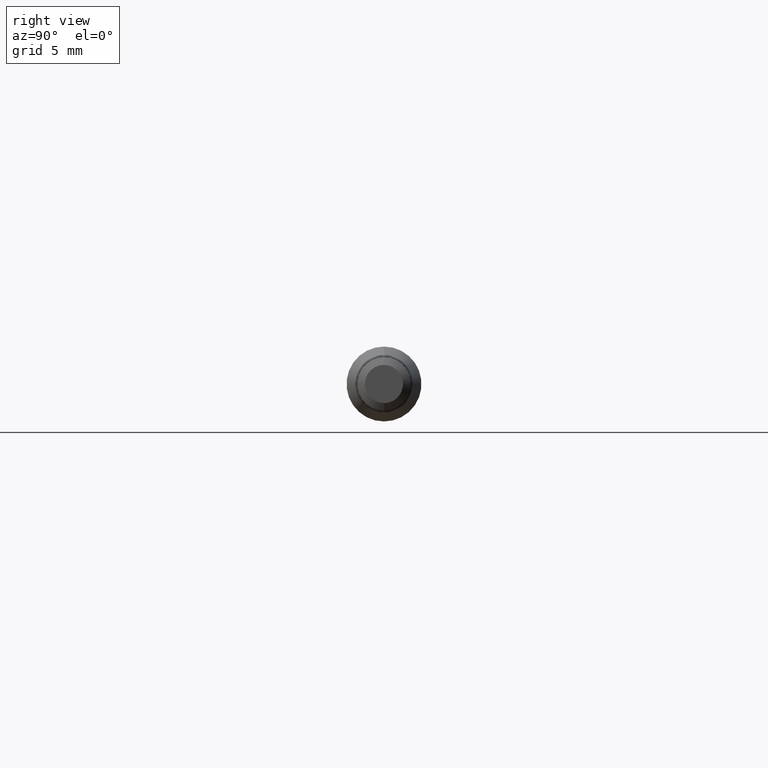
[diagram: clean part render]
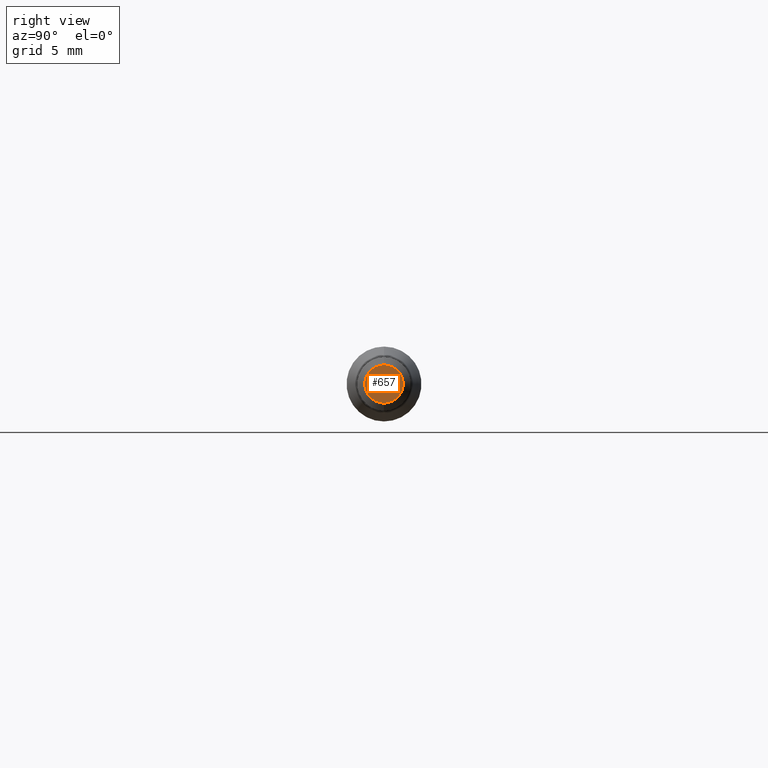
[diagram: same view with one face highlighted and labeled with its STEP entity id]
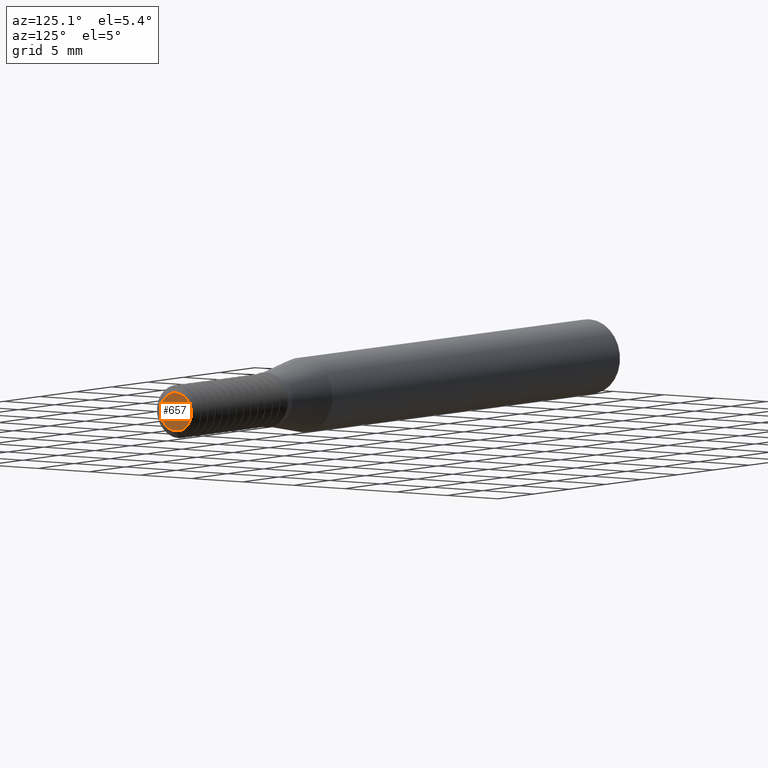
[diagram: same view with one face highlighted and labeled with its STEP entity id]
A machine part, right view. The second image highlights one B-rep face of the part: STEP entity #657.
A second angle (auxiliary view) of the same face is appended — the face is thin or edge-on in the first view.
In plain terms, the highlighted planar face has unit normal (1, 0, -0).
Its self-contained STEP definition (entity closure, byte-faithful):
#147 = PLANE ( 'NONE',  #2699 ) ;
#160 = VERTEX_POINT ( 'NONE', #2719 ) ;
#562 = CIRCLE ( 'NONE', #1013, 0.06015693458502681390 ) ;
#657 = ADVANCED_FACE ( 'NONE', ( #1632 ), #147, .T. ) ;
#691 = VERTEX_POINT ( 'NONE', #1699 ) ;
#694 = EDGE_CURVE ( 'NONE', #160, #691, #562, .T. ) ;
#695 = ORIENTED_EDGE ( 'NONE', *, *, #889, .T. ) ;
#768 = EDGE_LOOP ( 'NONE', ( #695, #966 ) ) ;
#889 = EDGE_CURVE ( 'NONE', #691, #160, #1267, .T. ) ;
#966 = ORIENTED_EDGE ( 'NONE', *, *, #694, .T. ) ;
#1013 = AXIS2_PLACEMENT_3D ( 'NONE', #2322, #1463, #2332 ) ;
#1267 = CIRCLE ( 'NONE', #1291, 0.06015693458502681390 ) ;
#1291 = AXIS2_PLACEMENT_3D ( 'NONE', #1847, #2462, #2682 ) ;
#1463 = DIRECTION ( 'NONE',  ( 1.000000000000000000, -0.0000000000000000000, -0.0000000000000000000 ) ) ;
#1632 = FACE_OUTER_BOUND ( 'NONE', #768, .T. ) ;
#1699 = CARTESIAN_POINT ( 'NONE',  ( 2.279999999999999805, 0.0000000000000000000, 0.06015693458502681390 ) ) ;
#1847 = CARTESIAN_POINT ( 'NONE',  ( 2.279999999999999805, 0.0000000000000000000, 0.0000000000000000000 ) ) ;
#1920 = DIRECTION ( 'NONE',  ( -0.0000000000000000000, 0.0000000000000000000, -1.000000000000000000 ) ) ;
#2194 = CARTESIAN_POINT ( 'NONE',  ( 2.279999999999999805, 0.08699999999999999400, 0.0000000000000000000 ) ) ;
#2322 = CARTESIAN_POINT ( 'NONE',  ( 2.279999999999999805, 0.0000000000000000000, 0.0000000000000000000 ) ) ;
#2332 = DIRECTION ( 'NONE',  ( 0.0000000000000000000, 0.0000000000000000000, -1.000000000000000000 ) ) ;
#2462 = DIRECTION ( 'NONE',  ( 1.000000000000000000, -0.0000000000000000000, -0.0000000000000000000 ) ) ;
#2547 = DIRECTION ( 'NONE',  ( 1.000000000000000000, 0.0000000000000000000, -0.0000000000000000000 ) ) ;
#2682 = DIRECTION ( 'NONE',  ( 0.0000000000000000000, 0.0000000000000000000, -1.000000000000000000 ) ) ;
#2699 = AXIS2_PLACEMENT_3D ( 'NONE', #2194, #2547, #1920 ) ;
#2719 = CARTESIAN_POINT ( 'NONE',  ( 2.279999999999999805, 7.367099738606980764E-18, -0.06015693458502681390 ) ) ;